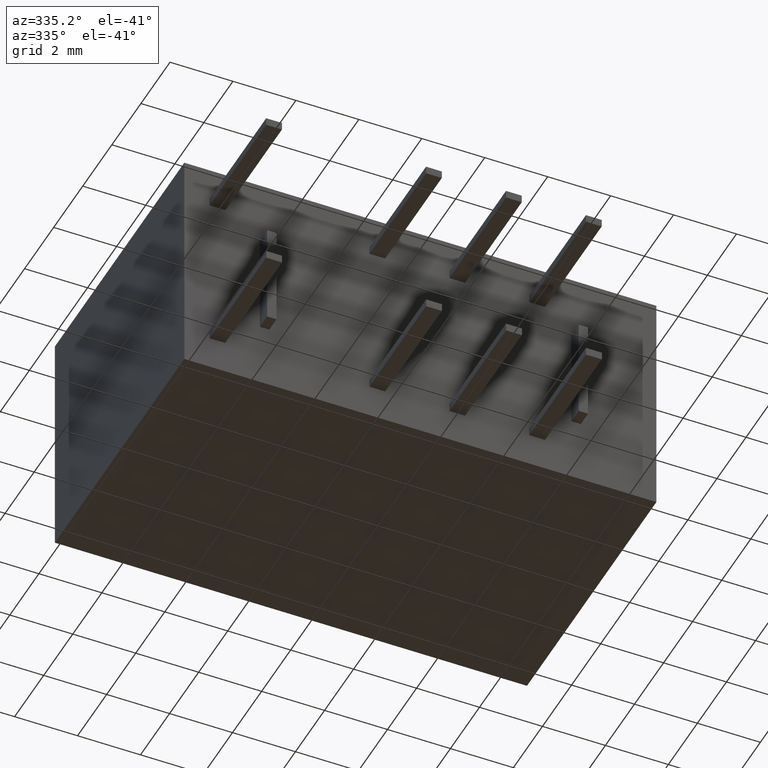
[diagram: clean part render]
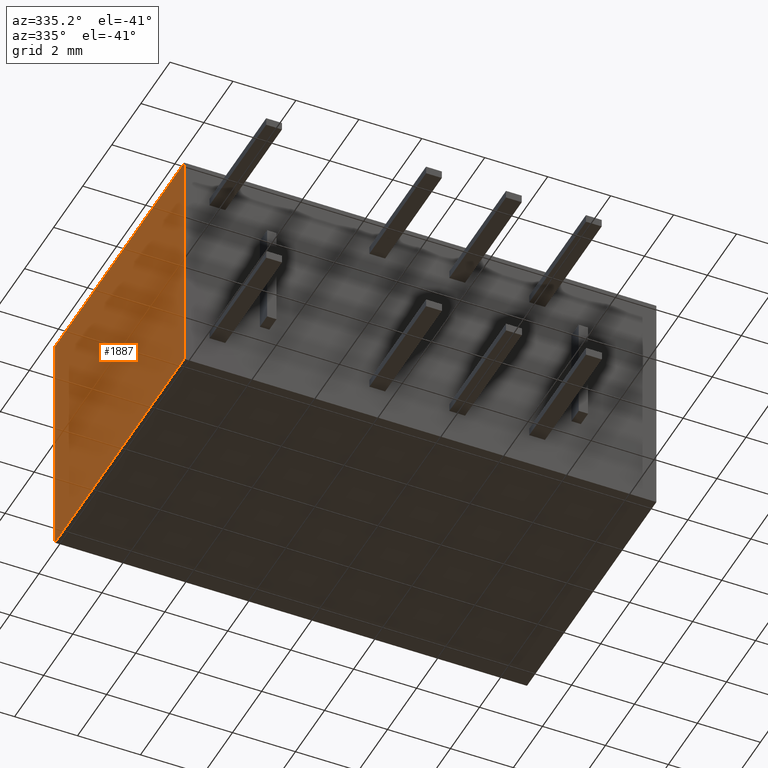
[diagram: same view with one face highlighted and labeled with its STEP entity id]
A machine part, auxiliary view. The second image highlights one B-rep face of the part: STEP entity #1887.
In plain terms, the highlighted planar face has unit normal (1, -0, 0).
Its self-contained STEP definition (entity closure, byte-faithful):
#90 = CARTESIAN_POINT ( 'NONE',  ( 0.0000000000000000000, 8.900000000000000400, -7.500000000000000000 ) ) ;
#125 = CARTESIAN_POINT ( 'NONE',  ( 0.0000000000000000000, 8.900000000000000400, 0.0000000000000000000 ) ) ;
#309 = PLANE ( 'NONE',  #2876 ) ;
#339 = ORIENTED_EDGE ( 'NONE', *, *, #2305, .T. ) ;
#493 = LINE ( 'NONE', #125, #4312 ) ;
#585 = EDGE_CURVE ( 'NONE', #4677, #1025, #3327, .T. ) ;
#1025 = VERTEX_POINT ( 'NONE', #1867 ) ;
#1249 = DIRECTION ( 'NONE',  ( -0.0000000000000000000, -0.0000000000000000000, 1.000000000000000000 ) ) ;
#1508 = DIRECTION ( 'NONE',  ( 0.0000000000000000000, 0.0000000000000000000, -1.000000000000000000 ) ) ;
#1591 = EDGE_CURVE ( 'NONE', #4362, #1025, #493, .T. ) ;
#1609 = CARTESIAN_POINT ( 'NONE',  ( 0.0000000000000000000, 8.900000000000000400, 0.0000000000000000000 ) ) ;
#1867 = CARTESIAN_POINT ( 'NONE',  ( 0.0000000000000000000, 0.0000000000000000000, 0.0000000000000000000 ) ) ;
#1887 = ADVANCED_FACE ( 'NONE', ( #4381 ), #309, .F. ) ;
#2305 = EDGE_CURVE ( 'NONE', #4700, #4677, #3666, .T. ) ;
#2683 = CARTESIAN_POINT ( 'NONE',  ( 0.0000000000000000000, 0.0000000000000000000, 0.0000000000000000000 ) ) ;
#2859 = VECTOR ( 'NONE', #1249, 1000.000000000000000 ) ;
#2876 = AXIS2_PLACEMENT_3D ( 'NONE', #3399, #3363, #1508 ) ;
#2886 = EDGE_CURVE ( 'NONE', #4700, #4362, #3860, .T. ) ;
#2986 = VECTOR ( 'NONE', #3869, 1000.000000000000000 ) ;
#3025 = ORIENTED_EDGE ( 'NONE', *, *, #585, .T. ) ;
#3327 = LINE ( 'NONE', #2683, #2986 ) ;
#3363 = DIRECTION ( 'NONE',  ( 1.000000000000000000, -0.0000000000000000000, 0.0000000000000000000 ) ) ;
#3397 = ORIENTED_EDGE ( 'NONE', *, *, #2886, .F. ) ;
#3399 = CARTESIAN_POINT ( 'NONE',  ( 0.0000000000000000000, 8.900000000000000400, 0.0000000000000000000 ) ) ;
#3447 = CARTESIAN_POINT ( 'NONE',  ( 0.0000000000000000000, 0.0000000000000000000, -7.500000000000000000 ) ) ;
#3666 = LINE ( 'NONE', #90, #3969 ) ;
#3860 = LINE ( 'NONE', #1609, #2859 ) ;
#3869 = DIRECTION ( 'NONE',  ( -0.0000000000000000000, -0.0000000000000000000, 1.000000000000000000 ) ) ;
#3969 = VECTOR ( 'NONE', #4239, 1000.000000000000000 ) ;
#4239 = DIRECTION ( 'NONE',  ( -0.0000000000000000000, -1.000000000000000000, -0.0000000000000000000 ) ) ;
#4306 = DIRECTION ( 'NONE',  ( -0.0000000000000000000, -1.000000000000000000, -0.0000000000000000000 ) ) ;
#4312 = VECTOR ( 'NONE', #4306, 1000.000000000000000 ) ;
#4362 = VERTEX_POINT ( 'NONE', #4404 ) ;
#4381 = FACE_OUTER_BOUND ( 'NONE', #4481, .T. ) ;
#4404 = CARTESIAN_POINT ( 'NONE',  ( 0.0000000000000000000, 8.900000000000000400, 0.0000000000000000000 ) ) ;
#4481 = EDGE_LOOP ( 'NONE', ( #3025, #4615, #3397, #339 ) ) ;
#4615 = ORIENTED_EDGE ( 'NONE', *, *, #1591, .F. ) ;
#4677 = VERTEX_POINT ( 'NONE', #3447 ) ;
#4700 = VERTEX_POINT ( 'NONE', #4969 ) ;
#4969 = CARTESIAN_POINT ( 'NONE',  ( 0.0000000000000000000, 8.900000000000000400, -7.500000000000000000 ) ) ;